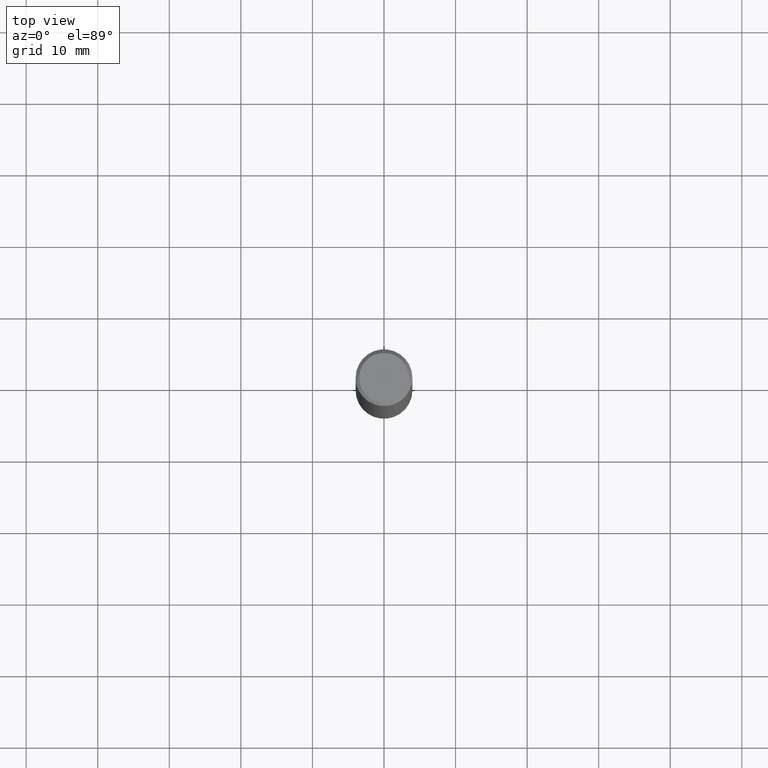
[diagram: clean part render]
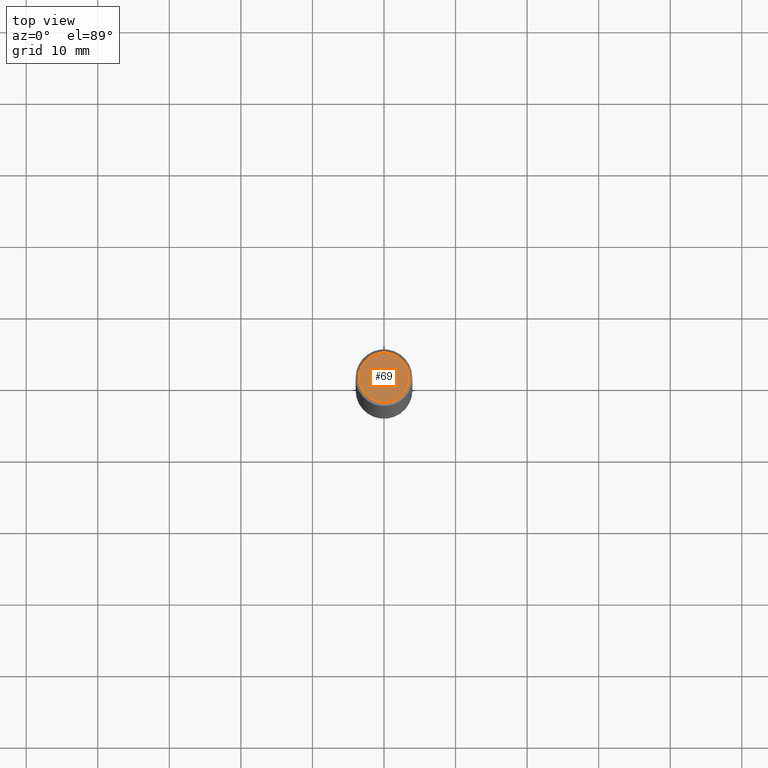
[diagram: same view with one face highlighted and labeled with its STEP entity id]
A machine part, top view. The second image highlights one B-rep face of the part: STEP entity #69.
In plain terms, the highlighted planar face has unit normal (0, -0, -1).
Its self-contained STEP definition (entity closure, byte-faithful):
#5 = DIRECTION ( 'NONE',  ( 1.000000000000000000, -6.982962677686266711E-15, 4.876176775795936353E-29 ) ) ;
#61 = DIRECTION ( 'NONE',  ( -2.445468806185136597E-29, 3.491481338843145583E-15, 1.000000000000000000 ) ) ;
#69 = ADVANCED_FACE ( 'NONE', ( #159 ), #352, .F. ) ;
#70 = EDGE_LOOP ( 'NONE', ( #340, #118 ) ) ;
#75 = DIRECTION ( 'NONE',  ( -1.000000000000000000, 6.982962677686265922E-15, -4.876176775795935793E-29 ) ) ;
#81 = DIRECTION ( 'NONE',  ( 1.000000000000000000, -6.982962677686266711E-15, 4.876176775795936353E-29 ) ) ;
#84 = CARTESIAN_POINT ( 'NONE',  ( 0.1362499999999997324, -1.038262645562516152E-15, 6.957025900226682464E-30 ) ) ;
#103 = CARTESIAN_POINT ( 'NONE',  ( -0.1362499999999997324, 9.863434782231830429E-16, -6.775751096333125871E-30 ) ) ;
#118 = ORIENTED_EDGE ( 'NONE', *, *, #363, .T. ) ;
#134 = DIRECTION ( 'NONE',  ( -2.445468806185136597E-29, 3.491481338843145583E-15, 1.000000000000000000 ) ) ;
#159 = FACE_OUTER_BOUND ( 'NONE', #70, .T. ) ;
#168 = VERTEX_POINT ( 'NONE', #103 ) ;
#182 = CARTESIAN_POINT ( 'NONE',  ( 0.000000000000000000, 0.000000000000000000, 0.000000000000000000 ) ) ;
#197 = AXIS2_PLACEMENT_3D ( 'NONE', #260, #134, #81 ) ;
#219 = CIRCLE ( 'NONE', #374, 0.1362499999999997324 ) ;
#248 = CIRCLE ( 'NONE', #197, 0.1362499999999997324 ) ;
#260 = CARTESIAN_POINT ( 'NONE',  ( 0.000000000000000000, 0.000000000000000000, 0.000000000000000000 ) ) ;
#272 = AXIS2_PLACEMENT_3D ( 'NONE', #380, #293, #75 ) ;
#293 = DIRECTION ( 'NONE',  ( 2.438088387897960049E-29, -3.491481338843145188E-15, -1.000000000000000000 ) ) ;
#308 = EDGE_CURVE ( 'NONE', #168, #335, #219, .T. ) ;
#335 = VERTEX_POINT ( 'NONE', #84 ) ;
#340 = ORIENTED_EDGE ( 'NONE', *, *, #308, .T. ) ;
#352 = PLANE ( 'NONE',  #272 ) ;
#363 = EDGE_CURVE ( 'NONE', #335, #168, #248, .T. ) ;
#374 = AXIS2_PLACEMENT_3D ( 'NONE', #182, #61, #5 ) ;
#380 = CARTESIAN_POINT ( 'NONE',  ( 9.514286648347519855E-16, 0.1362499999999997324, -4.757143324173776691E-16 ) ) ;